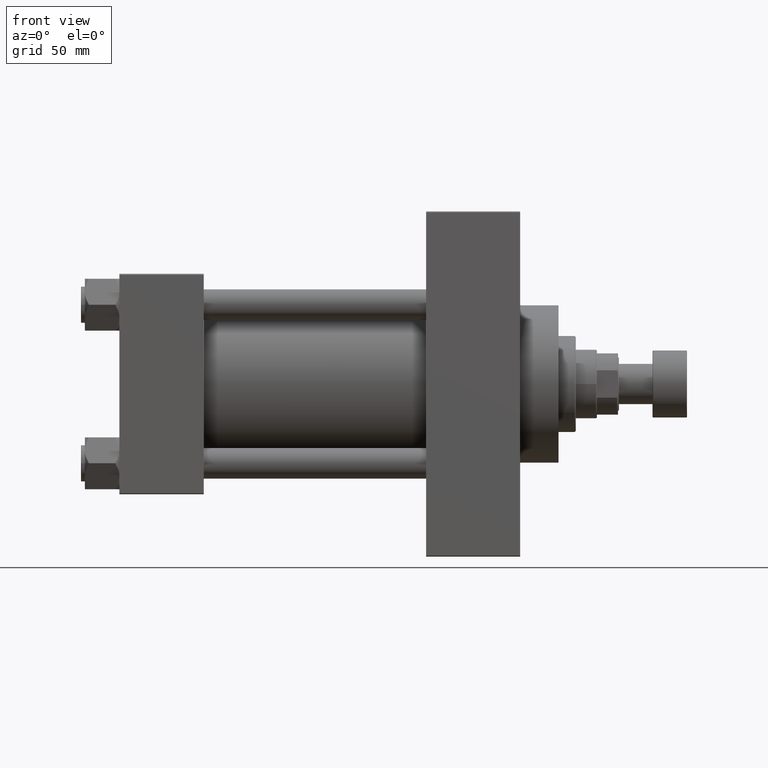
[diagram: clean part render]
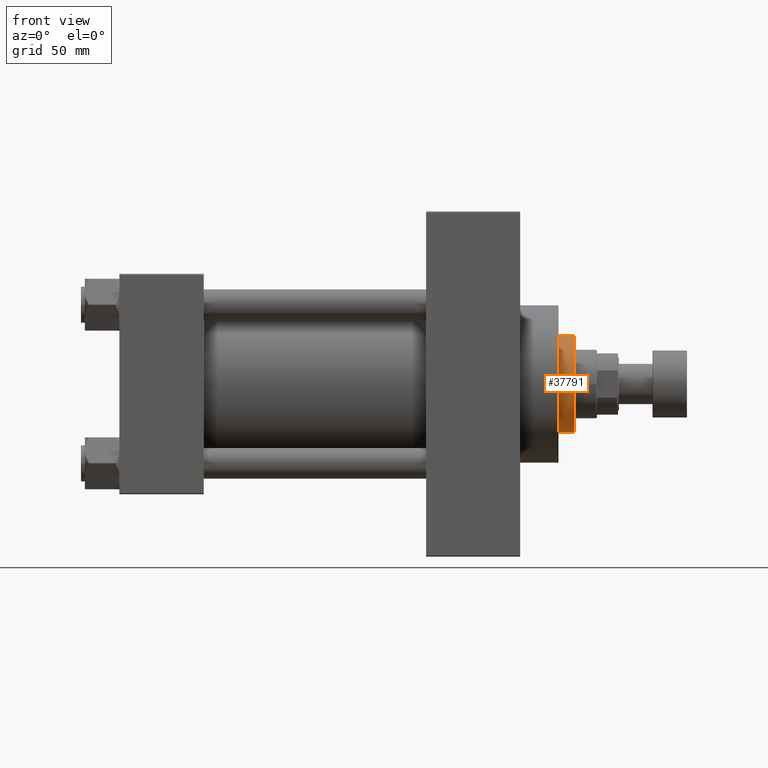
[diagram: same view with one face highlighted and labeled with its STEP entity id]
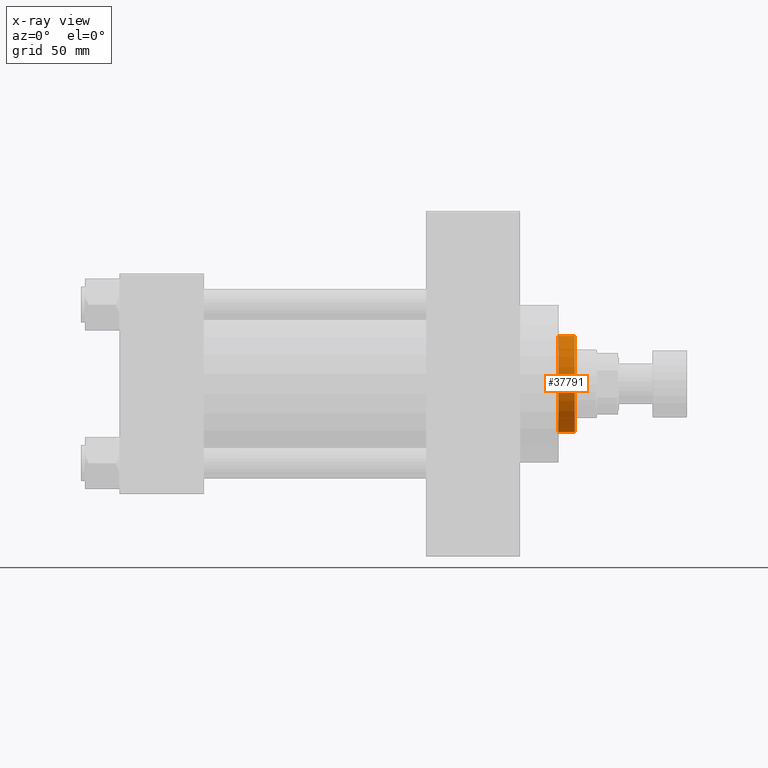
[diagram: x-ray of the same camera — body ghosted, the highlighted face saturated]
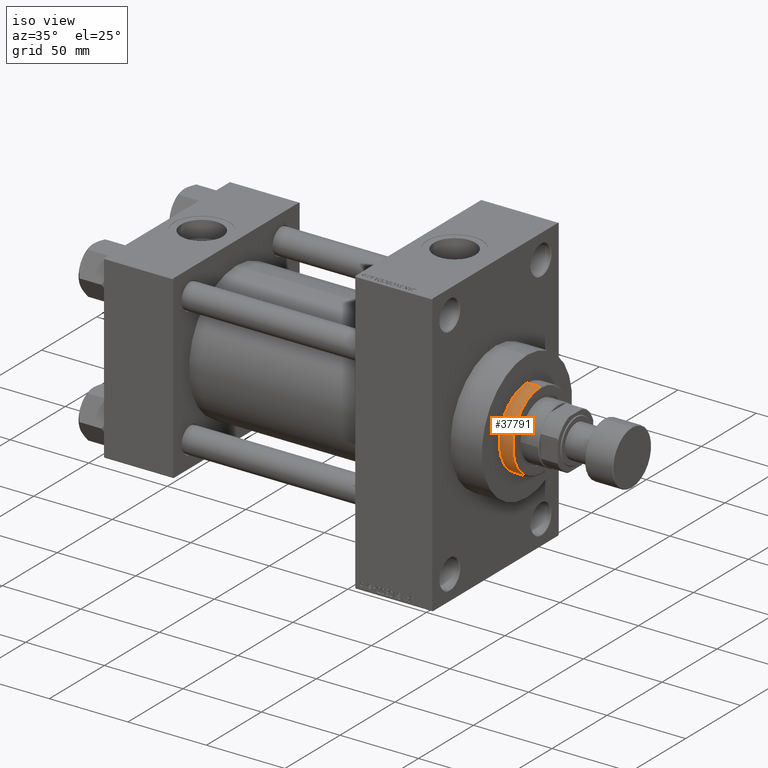
[diagram: same view with one face highlighted and labeled with its STEP entity id]
A machine part, front view. The second image highlights one B-rep face of the part: STEP entity #37791.
The next image is the same camera in x-ray: the body ghosted, the highlighted face saturated — about 0% of this face is hidden behind the body in this view.
A second angle (iso view) of the same face is appended — the face is thin or edge-on in the first view.
In plain terms, the highlighted cylindrical surface (partial cylindrical patch) has radius 25 mm, axis along (-1, 0, 0).
Its self-contained STEP definition (entity closure, byte-faithful):
#1429 = CARTESIAN_POINT ( 'NONE',  ( 0.000000000000000000, 0.000000000000000000, 43.25999999999999801 ) ) ;
#1776 = ORIENTED_EDGE ( 'NONE', *, *, #12459, .T. ) ;
#2441 = CYLINDRICAL_SURFACE ( 'NONE', #19312, 25.00000000000000000 ) ;
#2873 = VECTOR ( 'NONE', #21053, 1000.000000000000000 ) ;
#8773 = AXIS2_PLACEMENT_3D ( 'NONE', #1429, #27937, #20169 ) ;
#10292 = ORIENTED_EDGE ( 'NONE', *, *, #19248, .T. ) ;
#12459 = EDGE_CURVE ( 'NONE', #17019, #26634, #23521, .T. ) ;
#12704 = DIRECTION ( 'NONE',  ( -0.000000000000000000, -0.000000000000000000, -1.000000000000000000 ) ) ;
#13755 = LINE ( 'NONE', #40033, #2873 ) ;
#14558 = FACE_OUTER_BOUND ( 'NONE', #47015, .T. ) ;
#15155 = ORIENTED_EDGE ( 'NONE', *, *, #44212, .F. ) ;
#16144 = VERTEX_POINT ( 'NONE', #39415 ) ;
#16348 = LINE ( 'NONE', #31664, #18660 ) ;
#17019 = VERTEX_POINT ( 'NONE', #26562 ) ;
#17332 = DIRECTION ( 'NONE',  ( 0.000000000000000000, 0.000000000000000000, -1.000000000000000000 ) ) ;
#18660 = VECTOR ( 'NONE', #12704, 1000.000000000000000 ) ;
#19248 = EDGE_CURVE ( 'NONE', #35122, #16144, #34407, .T. ) ;
#19312 = AXIS2_PLACEMENT_3D ( 'NONE', #44485, #25976, #21850 ) ;
#20169 = DIRECTION ( 'NONE',  ( 1.000000000000000000, 0.000000000000000000, 0.000000000000000000 ) ) ;
#21053 = DIRECTION ( 'NONE',  ( -0.000000000000000000, -0.000000000000000000, -1.000000000000000000 ) ) ;
#21460 = DIRECTION ( 'NONE',  ( 1.000000000000000000, 0.000000000000000000, 0.000000000000000000 ) ) ;
#21850 = DIRECTION ( 'NONE',  ( -1.000000000000000000, 0.000000000000000000, 0.000000000000000000 ) ) ;
#23521 = CIRCLE ( 'NONE', #8773, 25.00000000000000000 ) ;
#24162 = CARTESIAN_POINT ( 'NONE',  ( -25.00000000000000000, 0.000000000000000000, 51.75999999999996959 ) ) ;
#25976 = DIRECTION ( 'NONE',  ( -0.000000000000000000, -0.000000000000000000, -1.000000000000000000 ) ) ;
#26562 = CARTESIAN_POINT ( 'NONE',  ( 25.00000000000000000, 3.061616997868383043E-15, 43.25999999999999801 ) ) ;
#26634 = VERTEX_POINT ( 'NONE', #42168 ) ;
#27937 = DIRECTION ( 'NONE',  ( 0.000000000000000000, 0.000000000000000000, 1.000000000000000000 ) ) ;
#31664 = CARTESIAN_POINT ( 'NONE',  ( -25.00000000000000000, 0.000000000000000000, 52.25999999999999801 ) ) ;
#34407 = CIRCLE ( 'NONE', #35190, 25.00000000000000000 ) ;
#34779 = EDGE_CURVE ( 'NONE', #16144, #17019, #13755, .T. ) ;
#35122 = VERTEX_POINT ( 'NONE', #24162 ) ;
#35190 = AXIS2_PLACEMENT_3D ( 'NONE', #46537, #17332, #21460 ) ;
#37791 = ADVANCED_FACE ( 'NONE', ( #14558 ), #2441, .T. ) ;
#39415 = CARTESIAN_POINT ( 'NONE',  ( 25.00000000000000000, 3.061616997868383043E-15, 51.75999999999996959 ) ) ;
#40033 = CARTESIAN_POINT ( 'NONE',  ( 25.00000000000000000, 3.061616997868383043E-15, 52.25999999999999801 ) ) ;
#42168 = CARTESIAN_POINT ( 'NONE',  ( -25.00000000000000000, 0.000000000000000000, 43.25999999999999801 ) ) ;
#44212 = EDGE_CURVE ( 'NONE', #35122, #26634, #16348, .T. ) ;
#44485 = CARTESIAN_POINT ( 'NONE',  ( 0.000000000000000000, 0.000000000000000000, 52.25999999999999801 ) ) ;
#46537 = CARTESIAN_POINT ( 'NONE',  ( 0.000000000000000000, 0.000000000000000000, 51.75999999999996959 ) ) ;
#46759 = ORIENTED_EDGE ( 'NONE', *, *, #34779, .T. ) ;
#47015 = EDGE_LOOP ( 'NONE', ( #10292, #46759, #1776, #15155 ) ) ;